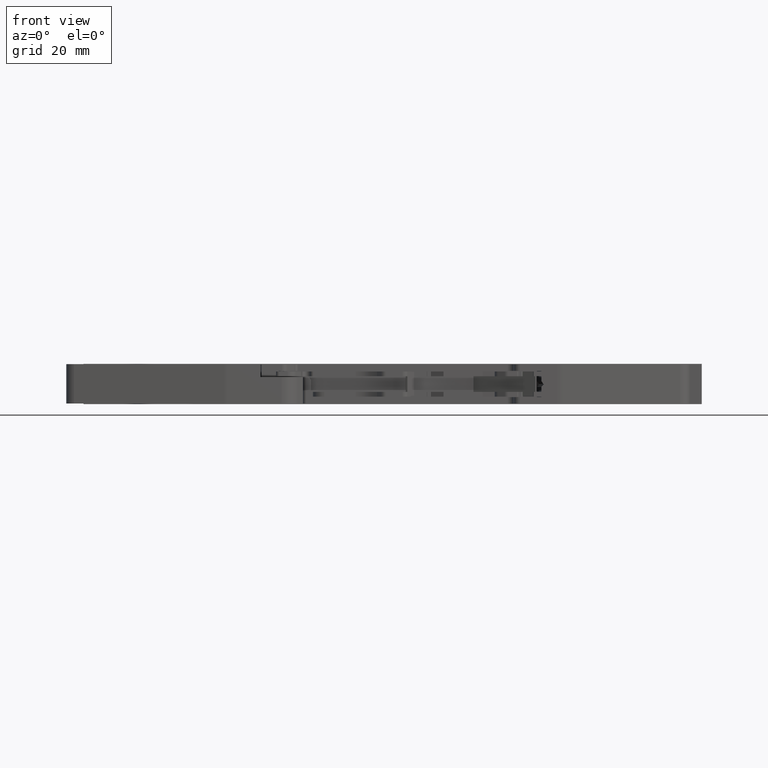
[diagram: clean part render]
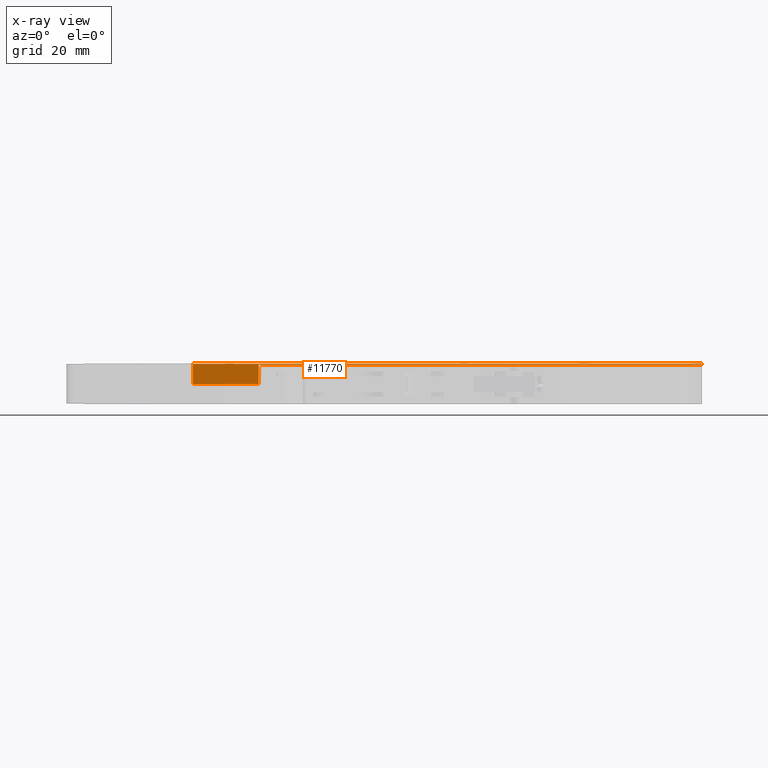
[diagram: x-ray — body ghosted, one internal face saturated and labeled with its STEP entity id]
A machine part, front view, then the same camera in x-ray: the body is ghosted and one INTERNAL B-rep face — a face not visible from any outside direction — is saturated and labeled: STEP entity #11770.
In plain terms, the highlighted planar face has unit normal (0, -1, 0).
Its self-contained STEP definition (entity closure, byte-faithful):
#414 = LINE ( 'NONE', #431, #14794 ) ;
#419 = DIRECTION ( 'NONE',  ( -0.0000000000000000000, 0.0000000000000000000, 1.000000000000000000 ) ) ;
#431 = CARTESIAN_POINT ( 'NONE',  ( 236.2775535535379800, 18.15365339502479400, -112.9851010389220100 ) ) ;
#463 = DIRECTION ( 'NONE',  ( 0.0000000000000000000, -0.0000000000000000000, -1.000000000000000000 ) ) ;
#473 = LINE ( 'NONE', #502, #13525 ) ;
#475 = CARTESIAN_POINT ( 'NONE',  ( 225.3132401042720100, 18.15365339502478600, -112.9851010389220100 ) ) ;
#478 = LINE ( 'NONE', #475, #14806 ) ;
#481 = DIRECTION ( 'NONE',  ( 1.000000000000000000, 7.546894870103224200E-016, 0.0000000000000000000 ) ) ;
#502 = CARTESIAN_POINT ( 'NONE',  ( 259.6925597848063500, 18.15365339502481100, 2.909999999999995700 ) ) ;
#693 = CARTESIAN_POINT ( 'NONE',  ( 259.6925597848063500, 18.15365339502481100, 6.154999999999994000 ) ) ;
#697 = DIRECTION ( 'NONE',  ( 1.000000000000000000, 7.546894870103224200E-016, 0.0000000000000000000 ) ) ;
#713 = LINE ( 'NONE', #693, #13653 ) ;
#1297 = ORIENTED_EDGE ( 'NONE', *, *, #22568, .T. ) ;
#1306 = ORIENTED_EDGE ( 'NONE', *, *, #22343, .T. ) ;
#1311 = ORIENTED_EDGE ( 'NONE', *, *, #22336, .T. ) ;
#5706 = CARTESIAN_POINT ( 'NONE',  ( 236.2775535535379800, 18.15365339502479400, 6.154999999999994000 ) ) ;
#5709 = CARTESIAN_POINT ( 'NONE',  ( 236.2775535535379800, 18.15365339502479400, 2.909999999999995700 ) ) ;
#5726 = CARTESIAN_POINT ( 'NONE',  ( 225.3132401042720100, 18.15365339502478300, 6.254999999999991000 ) ) ;
#5739 = CARTESIAN_POINT ( 'NONE',  ( 225.3132401042720100, 18.15365339502478300, 2.909999999999995700 ) ) ;
#5748 = CARTESIAN_POINT ( 'NONE',  ( 310.1925644423636800, 18.15365339502484700, 6.154999999999997600 ) ) ;
#5836 = CARTESIAN_POINT ( 'NONE',  ( 310.1925644423636800, 18.15365339502481800, 6.254999999999997200 ) ) ;
#8200 = PLANE ( 'NONE',  #13932 ) ;
#8220 = FACE_OUTER_BOUND ( 'NONE', #18563, .T. ) ;
#8221 = CARTESIAN_POINT ( 'NONE',  ( 259.6925597848063500, 18.15365339502481100, -112.9851010389220100 ) ) ;
#8251 = DIRECTION ( 'NONE',  ( 1.000000000000000000, 7.546894870103224200E-016, 0.0000000000000000000 ) ) ;
#8252 = DIRECTION ( 'NONE',  ( 7.546894870103224200E-016, -1.000000000000000000, 0.0000000000000000000 ) ) ;
#11770 = ADVANCED_FACE ( 'NONE', ( #8220 ), #8200, .T. ) ;
#13525 = VECTOR ( 'NONE', #481, 1000.000000000000000 ) ;
#13653 = VECTOR ( 'NONE', #697, 1000.000000000000000 ) ;
#13856 = VECTOR ( 'NONE', #19988, 1000.000000000000000 ) ;
#13932 = AXIS2_PLACEMENT_3D ( 'NONE', #8221, #8252, #8251 ) ;
#14003 = VECTOR ( 'NONE', #20161, 1000.000000000000000 ) ;
#14794 = VECTOR ( 'NONE', #419, 1000.000000000000000 ) ;
#14806 = VECTOR ( 'NONE', #463, 1000.000000000000000 ) ;
#18563 = EDGE_LOOP ( 'NONE', ( #22053, #22060, #1297, #22082, #1311, #1306 ) ) ;
#18837 = VERTEX_POINT ( 'NONE', #5726 ) ;
#18859 = VERTEX_POINT ( 'NONE', #5739 ) ;
#18879 = VERTEX_POINT ( 'NONE', #5706 ) ;
#18880 = VERTEX_POINT ( 'NONE', #5709 ) ;
#18934 = VERTEX_POINT ( 'NONE', #5748 ) ;
#18981 = VERTEX_POINT ( 'NONE', #5836 ) ;
#19983 = LINE ( 'NONE', #19994, #13856 ) ;
#19988 = DIRECTION ( 'NONE',  ( 1.000000000000000000, 0.0000000000000000000, -0.0000000000000000000 ) ) ;
#19994 = CARTESIAN_POINT ( 'NONE',  ( 259.6925597848063500, 18.15365339502478300, 6.254999999999999900 ) ) ;
#20153 = LINE ( 'NONE', #20172, #14003 ) ;
#20161 = DIRECTION ( 'NONE',  ( -0.0000000000000000000, 0.0000000000000000000, 1.000000000000000000 ) ) ;
#20172 = CARTESIAN_POINT ( 'NONE',  ( 310.1925644423636800, 18.15365339502484700, -112.9851010389220100 ) ) ;
#22053 = ORIENTED_EDGE ( 'NONE', *, *, #22327, .T. ) ;
#22060 = ORIENTED_EDGE ( 'NONE', *, *, #22420, .T. ) ;
#22082 = ORIENTED_EDGE ( 'NONE', *, *, #22517, .F. ) ;
#22327 = EDGE_CURVE ( 'NONE', #18880, #18879, #414, .T. ) ;
#22336 = EDGE_CURVE ( 'NONE', #18837, #18859, #478, .T. ) ;
#22343 = EDGE_CURVE ( 'NONE', #18859, #18880, #473, .T. ) ;
#22420 = EDGE_CURVE ( 'NONE', #18879, #18934, #713, .T. ) ;
#22517 = EDGE_CURVE ( 'NONE', #18837, #18981, #19983, .T. ) ;
#22568 = EDGE_CURVE ( 'NONE', #18934, #18981, #20153, .T. ) ;